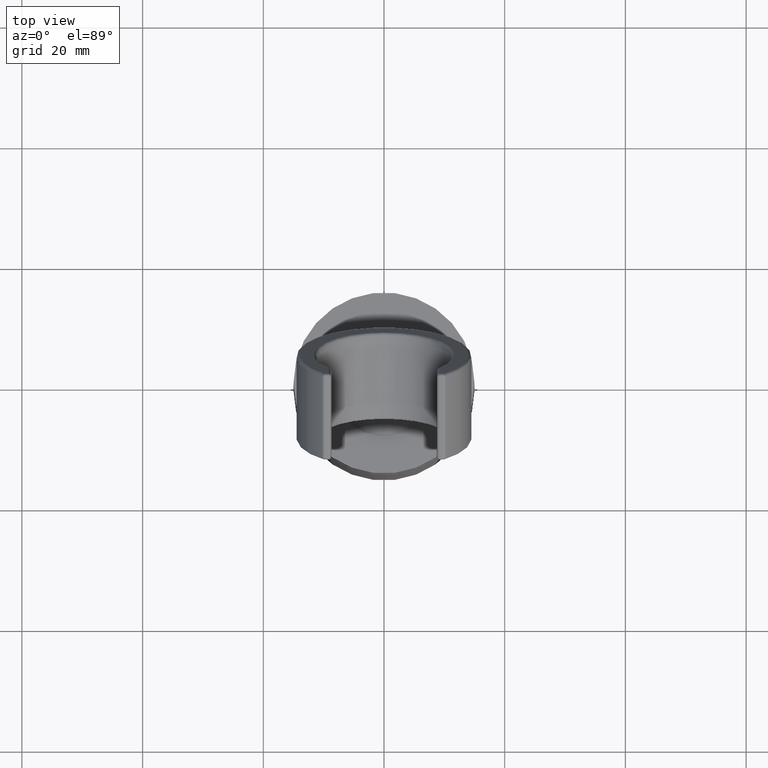
[diagram: clean part render]
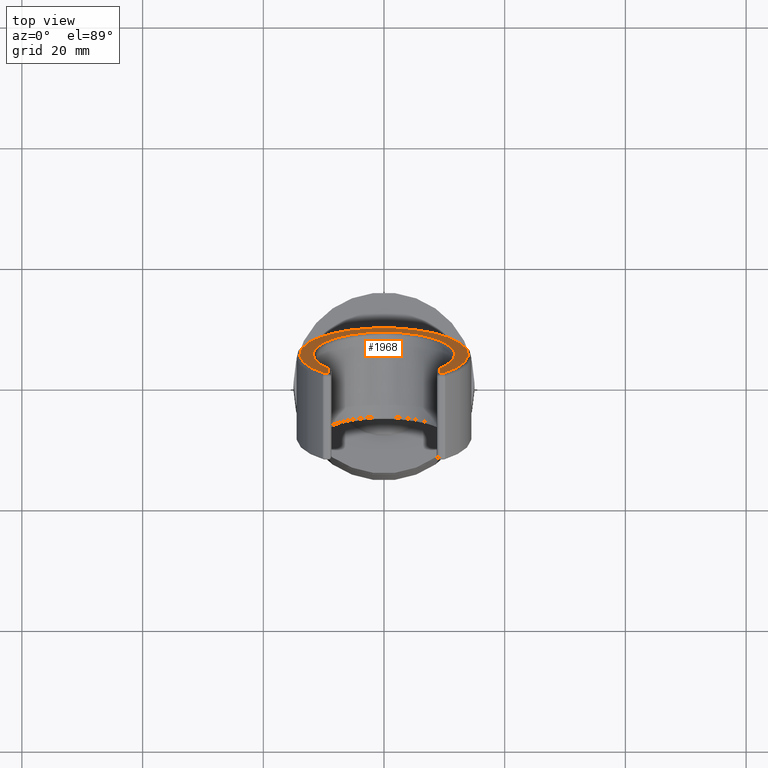
[diagram: same view with one face highlighted and labeled with its STEP entity id]
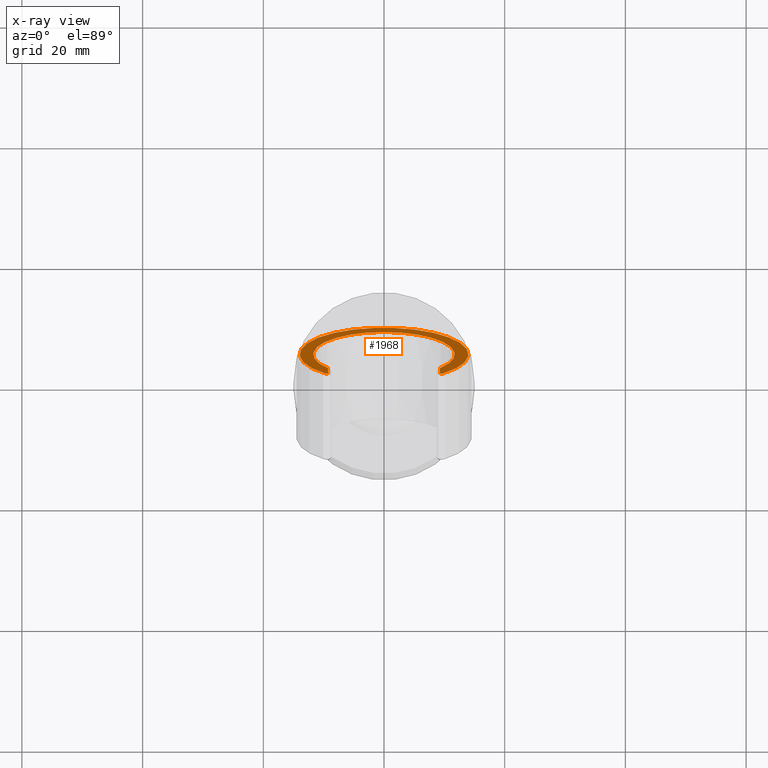
[diagram: x-ray of the same camera — body ghosted, the highlighted face saturated]
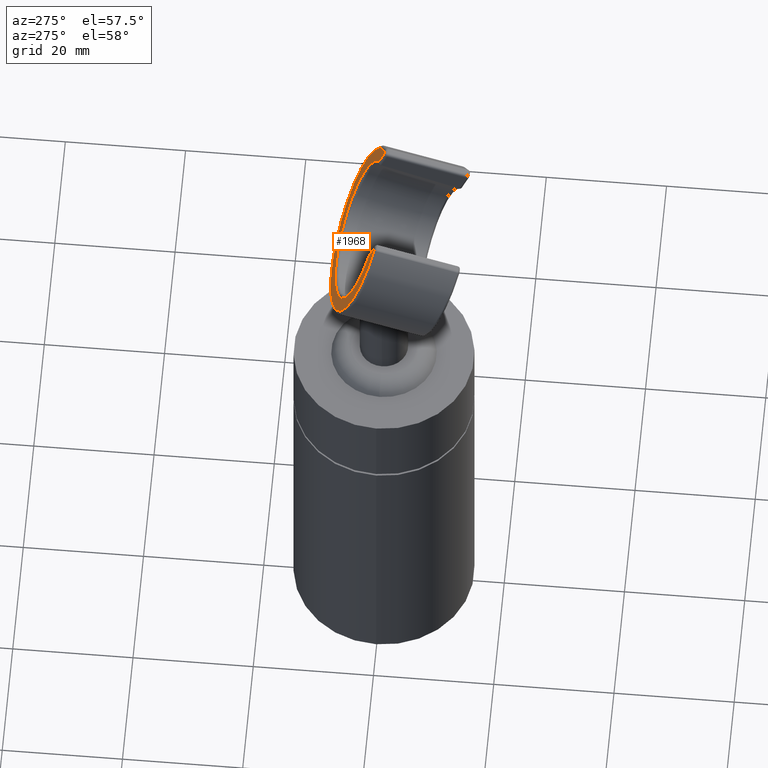
[diagram: same view with one face highlighted and labeled with its STEP entity id]
A machine part, top view. The second image highlights one B-rep face of the part: STEP entity #1968.
The next image is the same camera in x-ray: the body ghosted, the highlighted face saturated — about 0% of this face is hidden behind the body in this view.
A second angle (auxiliary view) of the same face is appended — the face is thin or edge-on in the first view.
In plain terms, the highlighted planar face has unit normal (0, 0.9433, 0.3319).
Its self-contained STEP definition (entity closure, byte-faithful):
#507=DIRECTION('',(-2.224792925054E-9,-3.319304896562E-1,9.433038482041E-1));
#508=VECTOR('',#507,2.780919109164E0);
#509=CARTESIAN_POINT('',(-9.249999993813E0,1.678545806568E0,5.863188098586E1));
#510=LINE('',#509,#508);
#511=DIRECTION('',(-1.E0,0.E0,-1.296707916454E-14));
#512=VECTOR('',#511,5.479589711328E-1);
#513=CARTESIAN_POINT('',(-9.25E0,7.554739649684E-1,6.125513268308E1));
#514=LINE('',#513,#512);
#515=CARTESIAN_POINT('',(0.E0,4.074778861530E0,5.182209420104E1));
#516=DIRECTION('',(0.E0,-9.433038482041E-1,-3.319304896562E-1));
#517=DIRECTION('',(-6.998542122238E-1,-2.370932068973E-1,6.737884630029E-1));
#518=AXIS2_PLACEMENT_3D('',#515,#516,#517);
#520=DIRECTION('',(-1.E0,0.E0,2.593415832909E-14));
#521=VECTOR('',#520,5.479589711328E-1);
#522=CARTESIAN_POINT('',(9.797958971133E0,7.554739649684E-1,6.125513268308E1));
#523=LINE('',#522,#521);
#524=DIRECTION('',(-8.132310552727E-9,3.319304896562E-1,-9.433038482041E-1));
#525=VECTOR('',#524,2.780918922819E0);
#526=CARTESIAN_POINT('',(9.25E0,7.554739649684E-1,6.125513268308E1));
#527=LINE('',#526,#525);
#528=CARTESIAN_POINT('',(0.E0,4.074778861530E0,5.182209420104E1));
#529=DIRECTION('',(0.E0,9.433038482041E-1,3.319304896562E-1));
#530=DIRECTION('',(7.883336088995E-1,-2.042195751806E-1,5.803658210065E-1));
#531=AXIS2_PLACEMENT_3D('',#528,#529,#530);
#654=CARTESIAN_POINT('',(-9.249999993813E0,1.678545806568E0,5.863188098586E1));
#655=CARTESIAN_POINT('',(-9.25E0,7.554739649684E-1,6.125513268308E1));
#656=VERTEX_POINT('',#654);
#657=VERTEX_POINT('',#655);
#662=CARTESIAN_POINT('',(-9.797958971133E0,7.554739649684E-1,6.125513268308E1));
#663=VERTEX_POINT('',#662);
#668=CARTESIAN_POINT('',(9.797958971133E0,7.554739649684E-1,6.125513268308E1));
#669=VERTEX_POINT('',#668);
#674=CARTESIAN_POINT('',(9.25E0,7.554739649684E-1,6.125513268308E1));
#675=VERTEX_POINT('',#674);
#680=CARTESIAN_POINT('',(9.249999977385E0,1.678545744714E0,5.863188116164E1));
#681=VERTEX_POINT('',#680);
#1955=CARTESIAN_POINT('',(0.E0,4.074778861530E0,5.182209420104E1));
#1956=DIRECTION('',(0.E0,9.433038482041E-1,3.319304896562E-1));
#1957=DIRECTION('',(0.E0,3.319304896562E-1,-9.433038482041E-1));
#1958=AXIS2_PLACEMENT_3D('',#1955,#1956,#1957);
#1959=PLANE('',#1958);
#1960=ORIENTED_EDGE('',*,*,#1644,.T.);
#1961=ORIENTED_EDGE('',*,*,#1538,.T.);
#1962=ORIENTED_EDGE('',*,*,#1374,.T.);
#1963=ORIENTED_EDGE('',*,*,#1942,.T.);
#1964=ORIENTED_EDGE('',*,*,#1860,.T.);
#1965=ORIENTED_EDGE('',*,*,#1752,.T.);
#1966=EDGE_LOOP('',(#1960,#1961,#1962,#1963,#1964,#1965));
#1967=FACE_OUTER_BOUND('',#1966,.F.);
#1968=ADVANCED_FACE('',(#1967),#1959,.T.);
#519=CIRCLE('',#518,1.4E1);
#532=CIRCLE('',#531,1.173361103399E1);
#1374=EDGE_CURVE('',#663,#669,#519,.T.);
#1538=EDGE_CURVE('',#657,#663,#514,.T.);
#1644=EDGE_CURVE('',#656,#657,#510,.T.);
#1752=EDGE_CURVE('',#681,#656,#532,.T.);
#1860=EDGE_CURVE('',#675,#681,#527,.T.);
#1942=EDGE_CURVE('',#669,#675,#523,.T.);